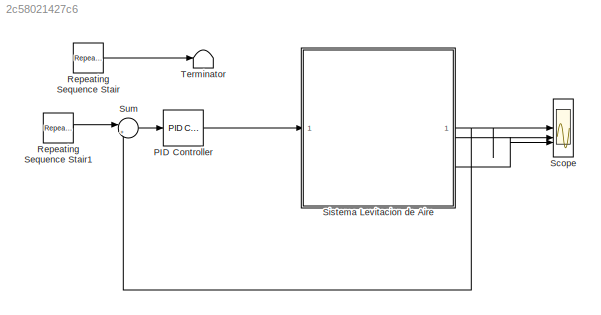
MODEL slx_2c58021427c6
KIND model
CONFIG AbsTol = auto
CONFIG EnableMultiTasking = off
CONFIG FixedStep = auto
CONFIG MaxStep = 0.1
CONFIG MinStep = auto
CONFIG RelTol = 1e-3
CONFIG SampleTimeConstraint = Unconstrained
CONFIG SolverName = VariableStepAuto
CONFIG StartTime = 0.0
CONFIG StopTime = 30
BLOCK [Reference] PID Controller  REF=slpidlib/PID Controller
  LibrarySourceBlock = simulink/Continuous/PID Controller
  SourceBlock = slpidlib/PID Controller
  SourceType = PID 1dof
BLOCK [Reference] Repeating Sequence Stair  REF=simulink/Sources/Repeating
Sequence
Stair
  SourceBlock = simulink/Sources/Repeating\nSequence\nStair
  SourceType = Repeating Sequence Stair
BLOCK [Reference] Repeating Sequence Stair1  REF=simulink/Sources/Repeating
Sequence
Stair
  SourceBlock = simulink/Sources/Repeating\nSequence\nStair
  SourceType = Repeating Sequence Stair
BLOCK [Scope] Scope
  Floating = off
  NumInputPorts = 3
  ScopeSpecificationString = Simulink.scopes.TimeScopeBlockCfg('CurrentConfiguration', extmgr.ConfigurationSet(extmgr.Configuration('Core','General UI',true,'FigureColor',[1 1 1]),extmgr.Configuration('Core','Source UI',true),extmgr.Configuration('Sources','WiredSimulink',true),extmgr.Configuration('Visuals','Time Domain',true,'SerializedDisplays',{struct('MinYLimReal','-11.44762','MaxYLimReal','103.02821','YLabelReal','','Mi...<+3138ch>
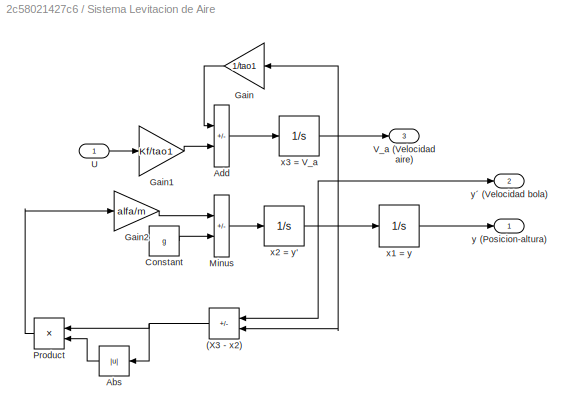
BLOCK [SubSystem] Sistema Levitacion de Aire
BLOCK [Sum] Sistema Levitacion de Aire/(X3 - x2)
  IconShape = rectangular
  Inputs = -+
BLOCK [Abs] Sistema Levitacion de Aire/Abs
  SaturateOnIntegerOverflow = off
BLOCK [Sum] Sistema Levitacion de Aire/Add
  IconShape = rectangular
  Inputs = -+
BLOCK [Constant] Sistema Levitacion de Aire/Constant
  Value = g
BLOCK [Gain] Sistema Levitacion de Aire/Gain
  Gain = 1/tao1
BLOCK [Gain] Sistema Levitacion de Aire/Gain1
  Gain = Kf/tao1
BLOCK [Gain] Sistema Levitacion de Aire/Gain2
  Gain = alfa/m
BLOCK [Sum] Sistema Levitacion de Aire/Minus
  IconShape = rectangular
  Inputs = +-
BLOCK [Product] Sistema Levitacion de Aire/Product
BLOCK [Inport] Sistema Levitacion de Aire/U
BLOCK [Outport] Sistema Levitacion de Aire/V_a (Velocidad aire)
  Port = 3
BLOCK [Integrator] Sistema Levitacion de Aire/x1 = y
  InitialCondition = ci(1)
BLOCK [Integrator] Sistema Levitacion de Aire/x2 = y'
  InitialCondition = ci(2)
BLOCK [Integrator] Sistema Levitacion de Aire/x3 = V_a
  InitialCondition = ci(3)
BLOCK [Outport] Sistema Levitacion de Aire/y (Posicion-altura)
  IconDisplay = Port number and signal name
BLOCK [Outport] Sistema Levitacion de Aire/y´ (Velocidad bola)
  Port = 2
BLOCK [Sum] Sum
  Inputs = |+-
BLOCK [Terminator] Terminator
LINE PID Controller:1 -> Sistema Levitacion de Aire:1
LINE Repeating Sequence Stair1:1 -> Sum:1
LINE Repeating Sequence Stair:1 -> Terminator:1
NET Sistema Levitacion de Aire/(X3 - x2):1 -> Sistema Levitacion de Aire/Abs:1, Sistema Levitacion de Aire/Product:1
LINE Sistema Levitacion de Aire/Abs:1 -> Sistema Levitacion de Aire/Product:2
LINE Sistema Levitacion de Aire/Add:1 -> Sistema Levitacion de Aire/x3 = V_a:1
LINE Sistema Levitacion de Aire/Constant:1 -> Sistema Levitacion de Aire/Minus:2
LINE Sistema Levitacion de Aire/Gain1:1 -> Sistema Levitacion de Aire/Add:2
LINE Sistema Levitacion de Aire/Gain2:1 -> Sistema Levitacion de Aire/Minus:1
LINE Sistema Levitacion de Aire/Gain:1 -> Sistema Levitacion de Aire/Add:1
LINE Sistema Levitacion de Aire/Minus:1 -> Sistema Levitacion de Aire/x2 = y':1
LINE Sistema Levitacion de Aire/Product:1 -> Sistema Levitacion de Aire/Gain2:1
LINE Sistema Levitacion de Aire/U:1 -> Sistema Levitacion de Aire/Gain1:1
LINE Sistema Levitacion de Aire/x1 = y:1 -> Sistema Levitacion de Aire/y (Posicion-altura):1
NET Sistema Levitacion de Aire/x2 = y':1 -> Sistema Levitacion de Aire/(X3 - x2):1, Sistema Levitacion de Aire/x1 = y:1, Sistema Levitacion de Aire/y´ (Velocidad bola):1
NET Sistema Levitacion de Aire/x3 = V_a:1 -> Sistema Levitacion de Aire/(X3 - x2):2, Sistema Levitacion de Aire/Gain:1, Sistema Levitacion de Aire/V_a (Velocidad aire):1
NET Sistema Levitacion de Aire:1 -> Scope:1, Sum:2
LINE Sistema Levitacion de Aire:2 -> Scope:2
LINE Sistema Levitacion de Aire:3 -> Scope:3
LINE Sum:1 -> PID Controller:1
note: NET lines group one-source signal fan-out (src -> all destinations, sorted); 1:1 wires keep LINE
